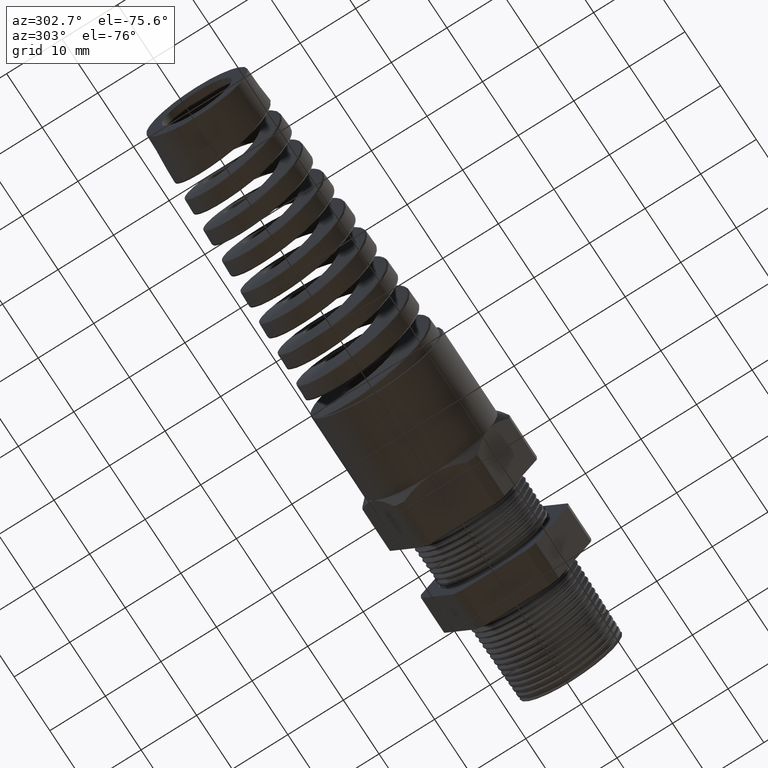
[diagram: clean part render]
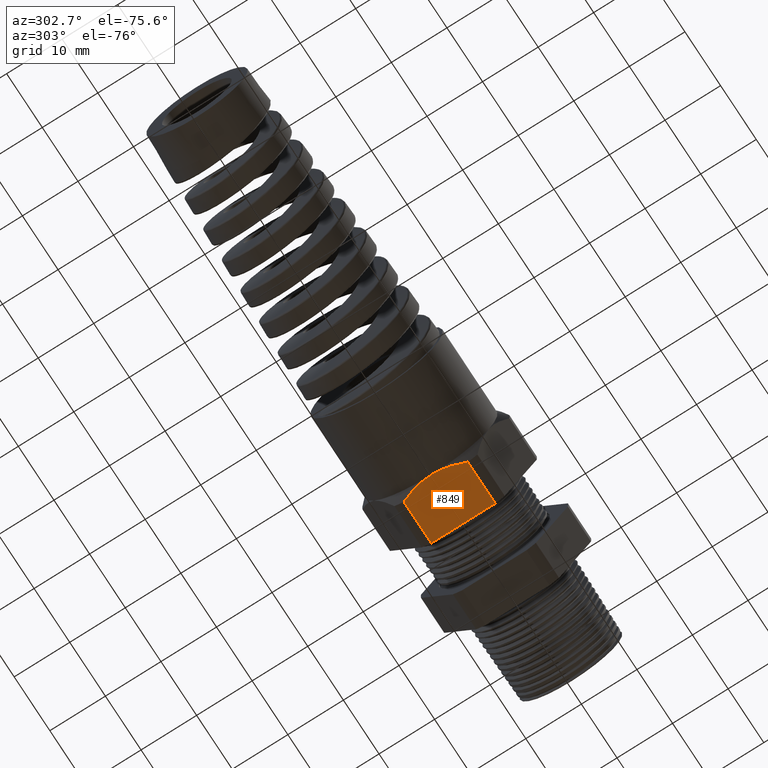
[diagram: same view with one face highlighted and labeled with its STEP entity id]
A machine part, auxiliary view. The second image highlights one B-rep face of the part: STEP entity #849.
In plain terms, the highlighted planar face has unit normal (0, 0, -1).
Its self-contained STEP definition (entity closure, byte-faithful):
#756 = EDGE_LOOP ( 'NONE', ( #757, #826, #828, #830, #831 ) ) ;
#757 = ORIENTED_EDGE ( 'NONE', *, *, #823, .T. ) ;
#823 = EDGE_CURVE ( 'NONE', #824, #825, #3694, .T. ) ;
#824 = VERTEX_POINT ( 'NONE', #3680 ) ;
#825 = VERTEX_POINT ( 'NONE', #3679 ) ;
#826 = ORIENTED_EDGE ( 'NONE', *, *, #827, .T. ) ;
#827 = EDGE_CURVE ( 'NONE', #825, #4595, #3735, .T. ) ;
#828 = ORIENTED_EDGE ( 'NONE', *, *, #829, .T. ) ;
#829 = EDGE_CURVE ( 'NONE', #4595, #843, #3725, .T. ) ;
#830 = ORIENTED_EDGE ( 'NONE', *, *, #841, .F. ) ;
#831 = ORIENTED_EDGE ( 'NONE', *, *, #832, .F. ) ;
#832 = EDGE_CURVE ( 'NONE', #824, #842, #3726, .T. ) ;
#841 = EDGE_CURVE ( 'NONE', #842, #843, #3757, .T. ) ;
#842 = VERTEX_POINT ( 'NONE', #3753 ) ;
#843 = VERTEX_POINT ( 'NONE', #3752 ) ;
#849 = ADVANCED_FACE ( 'NONE', ( #3741 ), #3739, .T. ) ;
#3679 = CARTESIAN_POINT ( 'NONE',  ( -1.212000787401574600, -0.2264307620443829500, -0.4700000000000000800 ) ) ;
#3680 = CARTESIAN_POINT ( 'NONE',  ( -0.9093700787401572900, -0.2264307620443829500, -0.4700000000000000800 ) ) ;
#3681 = DIRECTION ( 'NONE',  ( -1.000000000000000000, 0.0000000000000000000, 0.0000000000000000000 ) ) ;
#3692 = VECTOR ( 'NONE', #3681, 39.37007874015748100 ) ;
#3693 = CARTESIAN_POINT ( 'NONE',  ( 0.2800000000000000300, -0.2264307620443829500, -0.4700000000000000800 ) ) ;
#3694 = LINE ( 'NONE', #3693, #3692 ) ;
#3712 = CARTESIAN_POINT ( 'NONE',  ( -1.212000787401574600, 0.2264307620443829200, -0.4700000000000000800 ) ) ;
#3713 = CARTESIAN_POINT ( 'NONE',  ( -1.219737517183348900, 0.2086052162099335200, -0.4700000000000002500 ) ) ;
#3714 = CARTESIAN_POINT ( 'NONE',  ( -1.226911610827741600, 0.1903621927138389200, -0.4700000000000000800 ) ) ;
#3715 = CARTESIAN_POINT ( 'NONE',  ( -1.239629789118527300, 0.1533252955870066700, -0.4699999999999999700 ) ) ;
#3716 = CARTESIAN_POINT ( 'NONE',  ( -1.245139070595120000, 0.1346420459264777700, -0.4700000000000000300 ) ) ;
#3717 = CARTESIAN_POINT ( 'NONE',  ( -1.254168009292882000, 0.09688970369981476900, -0.4700000000000000800 ) ) ;
#3718 = CARTESIAN_POINT ( 'NONE',  ( -1.257686486788884000, 0.07782038235249973100, -0.4700000000000000800 ) ) ;
#3719 = CARTESIAN_POINT ( 'NONE',  ( -1.262454027609556600, 0.03924163778662356800, -0.4700000000000002000 ) ) ;
#3720 = CARTESIAN_POINT ( 'NONE',  ( -1.263700787401574400, 0.01964242875915816300, -0.4700000000000000800 ) ) ;
#3721 = CARTESIAN_POINT ( 'NONE',  ( -1.263700787401574700, 0.0000000000000000000, -0.4700000000000000800 ) ) ;
#3722 = DIRECTION ( 'NONE',  ( 0.0000000000000000000, 1.000000000000000000, 0.0000000000000000000 ) ) ;
#3723 = VECTOR ( 'NONE', #3722, 39.37007874015748100 ) ;
#3724 = CARTESIAN_POINT ( 'NONE',  ( -0.9093700787401572900, 0.3950000000000000200, -0.4700000000000000800 ) ) ;
#3725 = B_SPLINE_CURVE_WITH_KNOTS ( 'NONE', 3,
 ( #3721, #3720, #3719, #3718, #3717, #3716, #3715, #3714, #3713, #3712 ),
 .UNSPECIFIED., .F., .F.,
 ( 4, 2, 2, 2, 4 ),
 ( 0.01398828679202869500, 0.01545854684696777600, 0.01692880690190685600, 0.01839906695684593400, 0.01986932701178501700 ),
 .UNSPECIFIED. ) ;
#3726 = LINE ( 'NONE', #3724, #3723 ) ;
#3727 = CARTESIAN_POINT ( 'NONE',  ( -1.263700787401574700, 0.0000000000000000000, -0.4700000000000000800 ) ) ;
#3728 = CARTESIAN_POINT ( 'NONE',  ( -1.263700787401574700, -0.03934296915062174300, -0.4700000000000002500 ) ) ;
#3729 = CARTESIAN_POINT ( 'NONE',  ( -1.258715606046688600, -0.07783554612607075700, -0.4700000000000000800 ) ) ;
#3730 = CARTESIAN_POINT ( 'NONE',  ( -1.245168396511388900, -0.1345390626635393500, -0.4700000000000002000 ) ) ;
#3731 = CARTESIAN_POINT ( 'NONE',  ( -1.239649360459591700, -0.1532690879941741300, -0.4700000000000002000 ) ) ;
#3732 = CARTESIAN_POINT ( 'NONE',  ( -1.226886374871043700, -0.1904348960138964300, -0.4700000000000000800 ) ) ;
#3733 = CARTESIAN_POINT ( 'NONE',  ( -1.219737667600870700, -0.2086048696456205000, -0.4700000000000002500 ) ) ;
#3734 = CARTESIAN_POINT ( 'NONE',  ( -1.212000787401574600, -0.2264307620443829500, -0.4700000000000000800 ) ) ;
#3735 = B_SPLINE_CURVE_WITH_KNOTS ( 'NONE', 3,
 ( #3734, #3733, #3732, #3731, #3730, #3729, #3728, #3727 ),
 .UNSPECIFIED., .F., .F.,
 ( 4, 2, 2, 4 ),
 ( 0.008098547117357340200, 0.009570982036025183300, 0.01104341695469301900, 0.01398828679202869500 ),
 .UNSPECIFIED. ) ;
#3736 = DIRECTION ( 'NONE',  ( 0.0000000000000000000, 0.0000000000000000000, -1.000000000000000000 ) ) ;
#3737 = CARTESIAN_POINT ( 'NONE',  ( 0.2800000000000000300, 0.2264307620443829500, -0.4700000000000000800 ) ) ;
#3738 = AXIS2_PLACEMENT_3D ( 'NONE', #3737, #3736, #3799 ) ;
#3739 = PLANE ( 'NONE',  #3738 ) ;
#3741 = FACE_OUTER_BOUND ( 'NONE', #756, .T. ) ;
#3752 = CARTESIAN_POINT ( 'NONE',  ( -1.212000787401574600, 0.2264307620443829200, -0.4700000000000000800 ) ) ;
#3753 = CARTESIAN_POINT ( 'NONE',  ( -0.9093700787401572900, 0.2264307620443829200, -0.4700000000000000800 ) ) ;
#3754 = DIRECTION ( 'NONE',  ( -1.000000000000000000, 0.0000000000000000000, 0.0000000000000000000 ) ) ;
#3755 = VECTOR ( 'NONE', #3754, 39.37007874015748100 ) ;
#3756 = CARTESIAN_POINT ( 'NONE',  ( 0.2800000000000000300, 0.2264307620443829200, -0.4700000000000000800 ) ) ;
#3757 = LINE ( 'NONE', #3756, #3755 ) ;
#3799 = DIRECTION ( 'NONE',  ( -1.000000000000000000, 0.0000000000000000000, 0.0000000000000000000 ) ) ;
#4595 = VERTEX_POINT ( 'NONE', #13242 ) ;
#13242 = CARTESIAN_POINT ( 'NONE',  ( -1.263700787401574700, 0.0000000000000000000, -0.4700000000000000800 ) ) ;